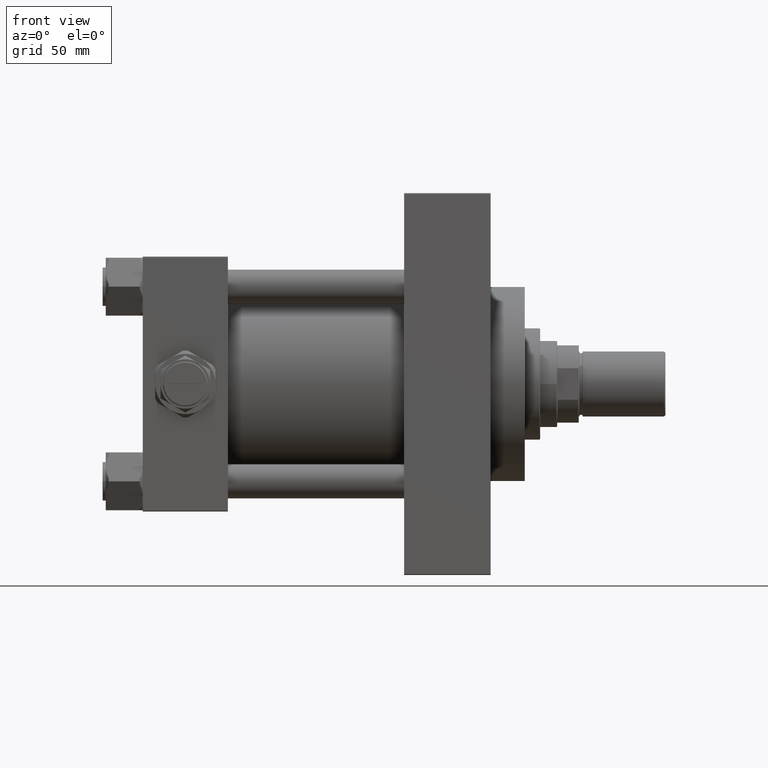
[diagram: clean part render]
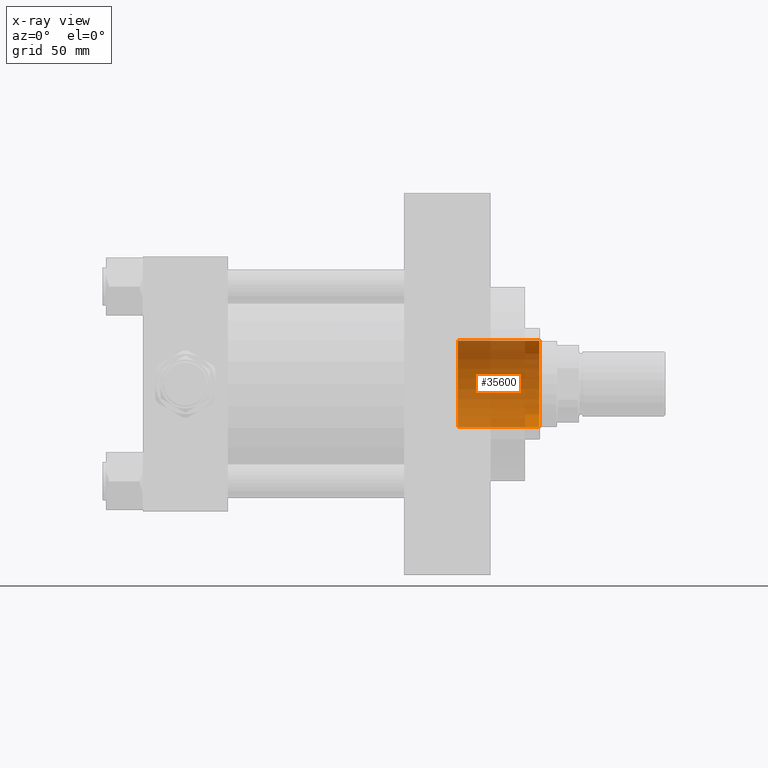
[diagram: x-ray — body ghosted, one internal face saturated and labeled with its STEP entity id]
A machine part, front view, then the same camera in x-ray: the body is ghosted and one INTERNAL B-rep face — a face not visible from any outside direction — is saturated and labeled: STEP entity #35600.
In plain terms, the highlighted cylindrical surface (partial cylindrical patch) has radius 28 mm, axis along (1, -0, -0).
Its self-contained STEP definition (entity closure, byte-faithful):
#53 = AXIS2_PLACEMENT_3D ( 'NONE', #20333, #4674, #31959 ) ;
#1025 = EDGE_CURVE ( 'NONE', #9688, #37225, #30758, .T. ) ;
#1526 = DIRECTION ( 'NONE',  ( -0.000000000000000000, -0.000000000000000000, -1.000000000000000000 ) ) ;
#1989 = DIRECTION ( 'NONE',  ( -0.000000000000000000, -0.000000000000000000, 1.000000000000000000 ) ) ;
#2222 = VECTOR ( 'NONE', #1989, 1000.000000000000000 ) ;
#2528 = EDGE_CURVE ( 'NONE', #29782, #9688, #26953, .T. ) ;
#4517 = AXIS2_PLACEMENT_3D ( 'NONE', #41960, #30599, #46004 ) ;
#4629 = CARTESIAN_POINT ( 'NONE',  ( 28.00000000000000000, 0.000000000000000000, -79.19595949289332282 ) ) ;
#4674 = DIRECTION ( 'NONE',  ( -0.000000000000000000, -0.000000000000000000, -1.000000000000000000 ) ) ;
#5739 = CARTESIAN_POINT ( 'NONE',  ( 28.00000000000000000, 0.000000000000000000, 52.75999999999999801 ) ) ;
#9688 = VERTEX_POINT ( 'NONE', #5739 ) ;
#10545 = CARTESIAN_POINT ( 'NONE',  ( -28.00000000000000000, 3.429011037612589276E-15, -79.19595949289332282 ) ) ;
#11520 = DIRECTION ( 'NONE',  ( -0.000000000000000000, -0.000000000000000000, 1.000000000000000000 ) ) ;
#12395 = ORIENTED_EDGE ( 'NONE', *, *, #45579, .T. ) ;
#15265 = CARTESIAN_POINT ( 'NONE',  ( -28.00000000000000000, 3.429011037612589276E-15, 0.000000000000000000 ) ) ;
#17927 = VERTEX_POINT ( 'NONE', #15265 ) ;
#19486 = VECTOR ( 'NONE', #11520, 1000.000000000000000 ) ;
#19740 = EDGE_CURVE ( 'NONE', #17927, #37225, #25218, .T. ) ;
#20333 = CARTESIAN_POINT ( 'NONE',  ( 0.000000000000000000, 0.000000000000000000, 0.000000000000000000 ) ) ;
#24403 = ORIENTED_EDGE ( 'NONE', *, *, #19740, .T. ) ;
#24499 = ORIENTED_EDGE ( 'NONE', *, *, #1025, .F. ) ;
#24974 = EDGE_LOOP ( 'NONE', ( #12395, #24403, #24499, #45728 ) ) ;
#25218 = LINE ( 'NONE', #10545, #2222 ) ;
#26561 = FACE_OUTER_BOUND ( 'NONE', #24974, .T. ) ;
#26724 = AXIS2_PLACEMENT_3D ( 'NONE', #31343, #1526, #46751 ) ;
#26953 = LINE ( 'NONE', #4629, #19486 ) ;
#29782 = VERTEX_POINT ( 'NONE', #48930 ) ;
#29876 = CARTESIAN_POINT ( 'NONE',  ( -28.00000000000000000, 3.429011037612589276E-15, 52.75999999999999801 ) ) ;
#30599 = DIRECTION ( 'NONE',  ( -0.000000000000000000, -0.000000000000000000, 1.000000000000000000 ) ) ;
#30758 = CIRCLE ( 'NONE', #26724, 28.00000000000000000 ) ;
#31343 = CARTESIAN_POINT ( 'NONE',  ( 0.000000000000000000, 0.000000000000000000, 52.75999999999999801 ) ) ;
#31959 = DIRECTION ( 'NONE',  ( 1.000000000000000000, 0.000000000000000000, 0.000000000000000000 ) ) ;
#33643 = CYLINDRICAL_SURFACE ( 'NONE', #4517, 28.00000000000000000 ) ;
#35600 = ADVANCED_FACE ( 'NONE', ( #26561 ), #33643, .F. ) ;
#37225 = VERTEX_POINT ( 'NONE', #29876 ) ;
#41960 = CARTESIAN_POINT ( 'NONE',  ( 0.000000000000000000, 0.000000000000000000, -79.19595949289332282 ) ) ;
#45579 = EDGE_CURVE ( 'NONE', #29782, #17927, #49240, .T. ) ;
#45728 = ORIENTED_EDGE ( 'NONE', *, *, #2528, .F. ) ;
#46004 = DIRECTION ( 'NONE',  ( 1.000000000000000000, 0.000000000000000000, 0.000000000000000000 ) ) ;
#46751 = DIRECTION ( 'NONE',  ( 1.000000000000000000, 0.000000000000000000, 0.000000000000000000 ) ) ;
#48930 = CARTESIAN_POINT ( 'NONE',  ( 28.00000000000000000, 0.000000000000000000, 0.000000000000000000 ) ) ;
#49240 = CIRCLE ( 'NONE', #53, 28.00000000000000000 ) ;